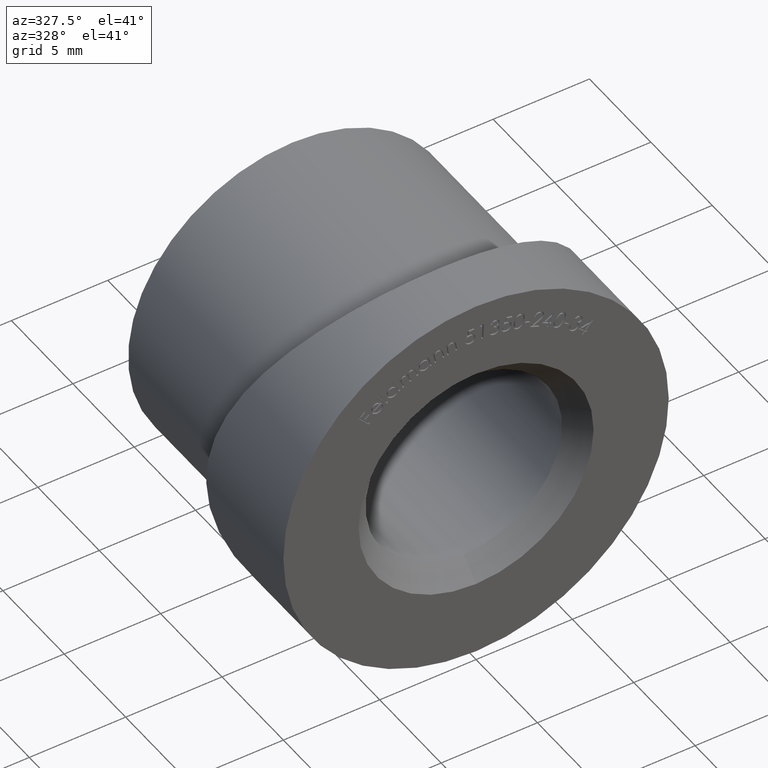
[diagram: clean part render]
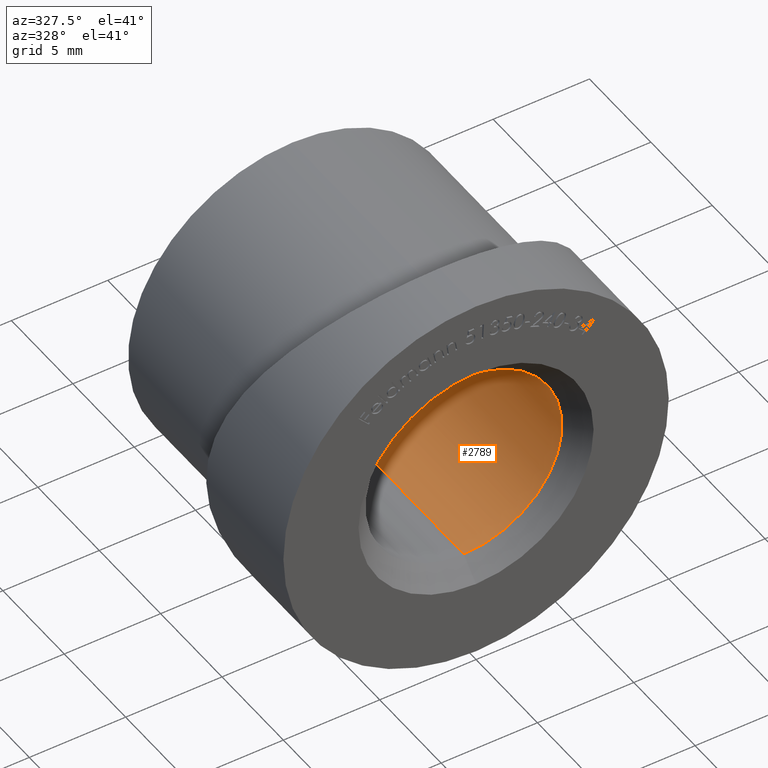
[diagram: same view with one face highlighted and labeled with its STEP entity id]
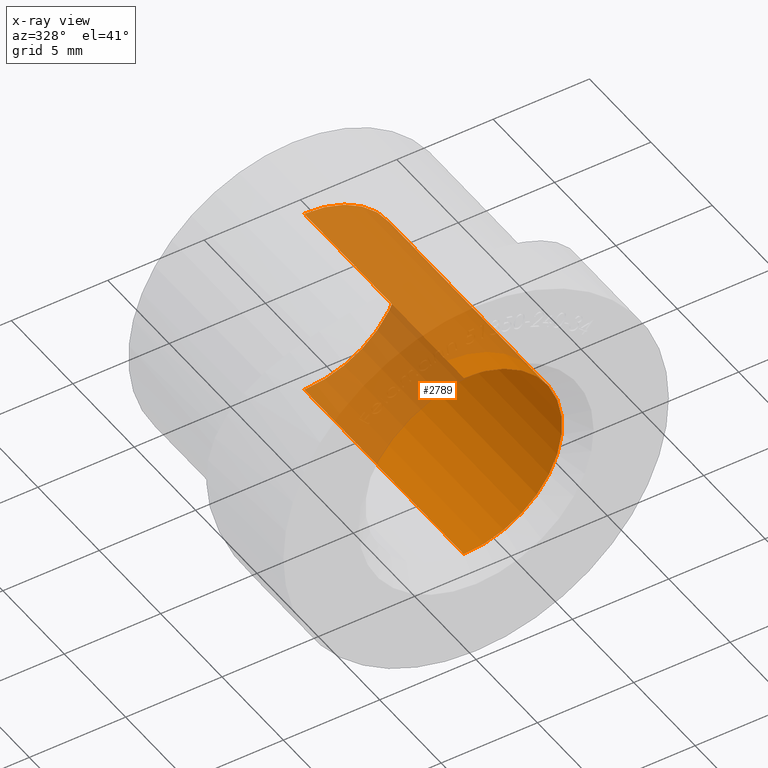
[diagram: x-ray of the same camera — body ghosted, the highlighted face saturated]
A machine part, auxiliary view. The second image highlights one B-rep face of the part: STEP entity #2789.
The next image is the same camera in x-ray: the body ghosted, the highlighted face saturated — about 49% of this face is hidden behind the body in this view.
In plain terms, the highlighted cylindrical surface (partial cylindrical patch) has radius 5.1 mm, axis along (-0, 1, -0).
Its self-contained STEP definition (entity closure, byte-faithful):
#65 = DIRECTION ( 'NONE',  ( 0.0000000000000000000, 0.0000000000000000000, 1.000000000000000000 ) ) ;
#159 = CARTESIAN_POINT ( 'NONE',  ( 0.0000000000000000000, 15.00000000000000000, 0.0000000000000000000 ) ) ;
#836 = ORIENTED_EDGE ( 'NONE', *, *, #9405, .T. ) ;
#2050 = CARTESIAN_POINT ( 'NONE',  ( 0.0000000000000000000, 15.00000000000000000, 5.099999999999996100 ) ) ;
#2438 = CARTESIAN_POINT ( 'NONE',  ( 0.0000000000000000000, 13.99999999999999800, 0.0000000000000000000 ) ) ;
#2440 = LINE ( 'NONE', #6291, #14444 ) ;
#2480 = DIRECTION ( 'NONE',  ( -0.0000000000000000000, 1.000000000000000000, -0.0000000000000000000 ) ) ;
#2732 = VERTEX_POINT ( 'NONE', #13981 ) ;
#2789 = ADVANCED_FACE ( 'NONE', ( #6298 ), #10817, .F. ) ;
#3543 = EDGE_CURVE ( 'NONE', #3858, #2732, #5485, .T. ) ;
#3858 = VERTEX_POINT ( 'NONE', #8826 ) ;
#3887 = AXIS2_PLACEMENT_3D ( 'NONE', #2438, #4873, #12984 ) ;
#4072 = ORIENTED_EDGE ( 'NONE', *, *, #13262, .T. ) ;
#4873 = DIRECTION ( 'NONE',  ( 0.0000000000000000000, 1.000000000000000000, 0.0000000000000000000 ) ) ;
#5029 = DIRECTION ( 'NONE',  ( -0.0000000000000000000, 1.000000000000000000, -0.0000000000000000000 ) ) ;
#5485 = LINE ( 'NONE', #2050, #11646 ) ;
#5492 = CARTESIAN_POINT ( 'NONE',  ( 0.0000000000000000000, 0.9999999999999974500, 0.0000000000000000000 ) ) ;
#6291 = CARTESIAN_POINT ( 'NONE',  ( 6.245698675651496900E-016, 15.00000000000000000, -5.099999999999996100 ) ) ;
#6298 = FACE_OUTER_BOUND ( 'NONE', #9754, .T. ) ;
#6335 = CIRCLE ( 'NONE', #14194, 5.099999999999996100 ) ;
#7991 = CARTESIAN_POINT ( 'NONE',  ( 6.245698675651496900E-016, 0.9999999999999974500, -5.099999999999996100 ) ) ;
#8826 = CARTESIAN_POINT ( 'NONE',  ( 0.0000000000000000000, 0.9999999999999974500, 5.099999999999996100 ) ) ;
#9405 = EDGE_CURVE ( 'NONE', #11531, #3858, #6335, .T. ) ;
#9597 = ORIENTED_EDGE ( 'NONE', *, *, #14991, .F. ) ;
#9754 = EDGE_LOOP ( 'NONE', ( #9597, #836, #14435, #4072 ) ) ;
#10817 = CYLINDRICAL_SURFACE ( 'NONE', #13966, 5.099999999999996100 ) ;
#10822 = CARTESIAN_POINT ( 'NONE',  ( 6.245698675651496900E-016, 13.99999999999999800, -5.099999999999996100 ) ) ;
#11466 = DIRECTION ( 'NONE',  ( -0.0000000000000000000, -1.000000000000000000, -0.0000000000000000000 ) ) ;
#11531 = VERTEX_POINT ( 'NONE', #7991 ) ;
#11646 = VECTOR ( 'NONE', #14635, 1000.000000000000000 ) ;
#12406 = VERTEX_POINT ( 'NONE', #10822 ) ;
#12448 = CIRCLE ( 'NONE', #3887, 5.099999999999996100 ) ;
#12535 = DIRECTION ( 'NONE',  ( 0.0000000000000000000, 0.0000000000000000000, 1.000000000000000000 ) ) ;
#12984 = DIRECTION ( 'NONE',  ( 0.0000000000000000000, 0.0000000000000000000, -1.000000000000000000 ) ) ;
#13262 = EDGE_CURVE ( 'NONE', #2732, #12406, #12448, .T. ) ;
#13966 = AXIS2_PLACEMENT_3D ( 'NONE', #159, #2480, #65 ) ;
#13981 = CARTESIAN_POINT ( 'NONE',  ( 0.0000000000000000000, 13.99999999999999800, 5.099999999999996100 ) ) ;
#14194 = AXIS2_PLACEMENT_3D ( 'NONE', #5492, #11466, #12535 ) ;
#14435 = ORIENTED_EDGE ( 'NONE', *, *, #3543, .T. ) ;
#14444 = VECTOR ( 'NONE', #5029, 1000.000000000000000 ) ;
#14635 = DIRECTION ( 'NONE',  ( -0.0000000000000000000, 1.000000000000000000, -0.0000000000000000000 ) ) ;
#14991 = EDGE_CURVE ( 'NONE', #11531, #12406, #2440, .T. ) ;